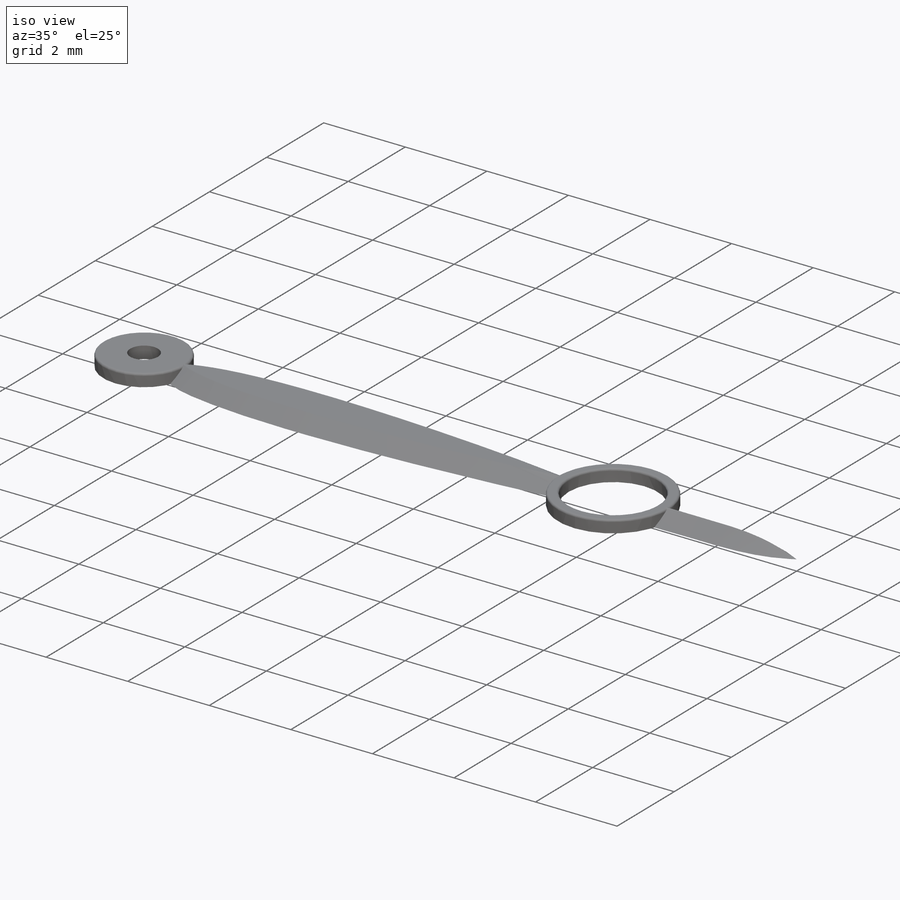
[diagram: iso view]
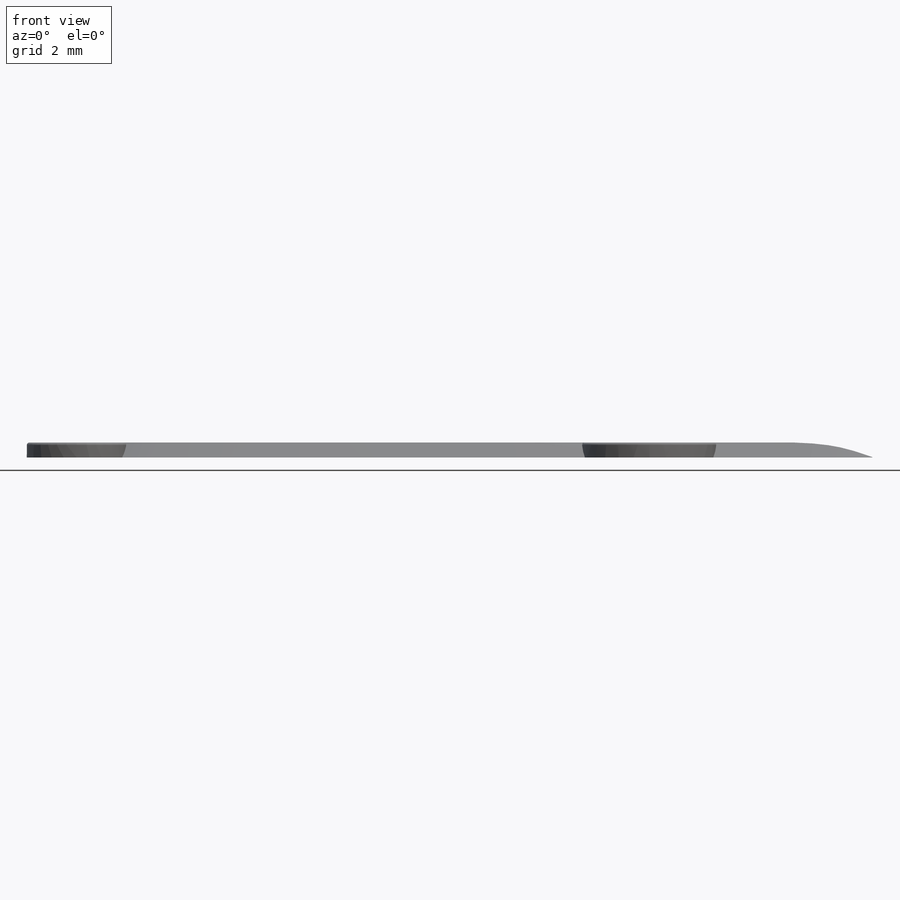
[diagram: front view]
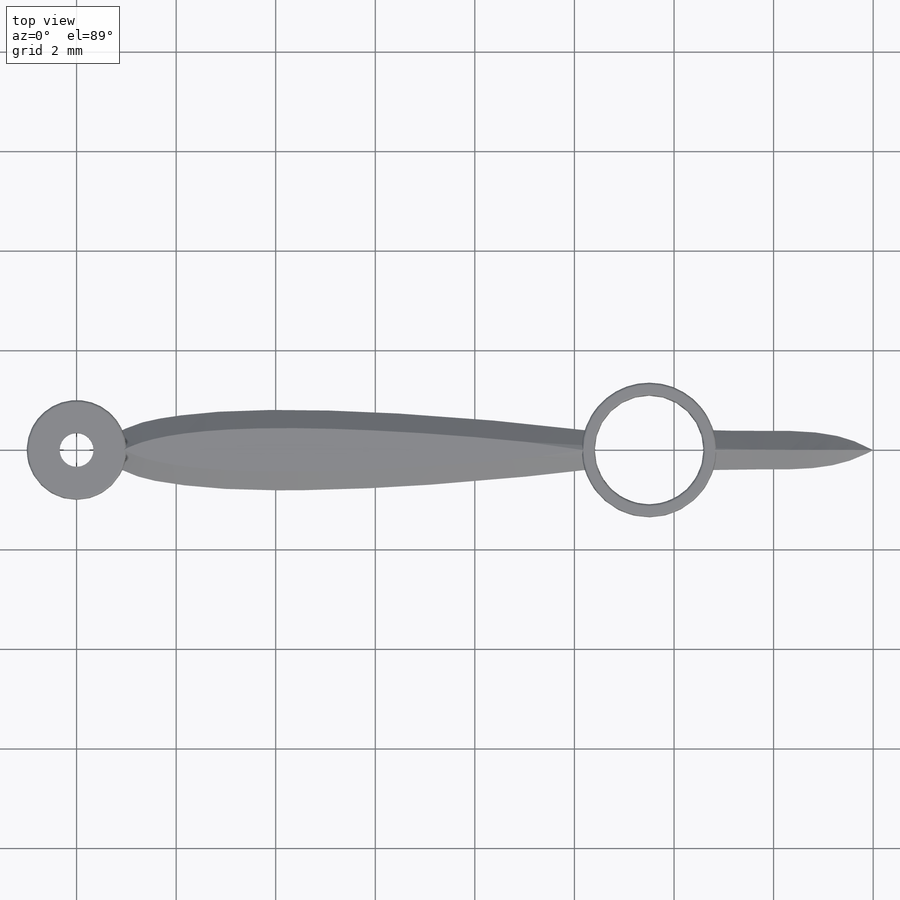
[diagram: top view]
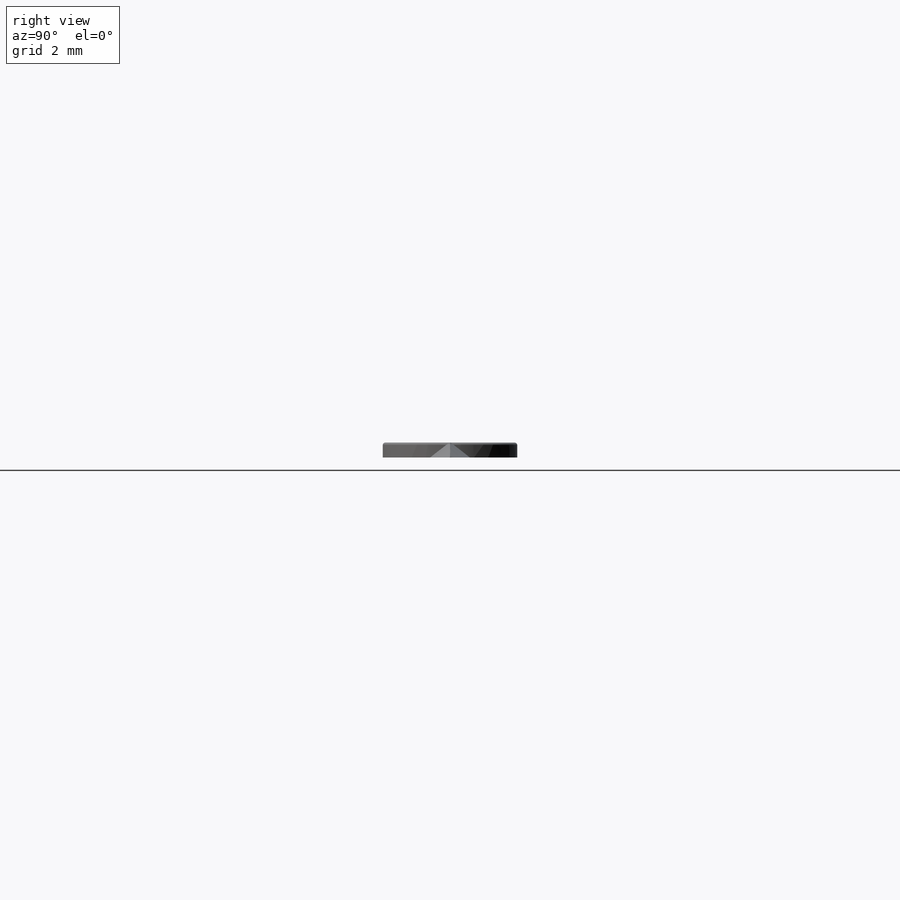
[diagram: right view]
SOLIDWORKS PART (.sldprt)
format: sldprt  version: not decoded by parser v0  size: 434,176 bytes
history: native  units: mm
features: fillet x3, chamfer x2, material x1, sketch x1, extrude x1 (+11 scaffold rows collapsed)
feature tree (19):
  scaffold x11  (default folders/planes/origin — collapsed)
  material  "Material <not specified>"
  sketch  "Sketch1"  dims[c1.D1=0.68mm c1.D3=2.7mm c1.D4=~2.184877mm c1.D5=1.0mm c1.D2=16.0mm c2.D4=4.5mm c2.D6=0.4mm c2.D7=0.4mm c2.D8=0.4mm]
  extrude  "Boss-Extrude1"  Depth=0.3mm
  chamfer  "Chamfer1"  Distance=0.3mm Angle=51deg
  chamfer  "Chamfer2"  Distance=0.3mm Angle=52deg
  fillet  "Fillet1"  Radius=0.05mm
  fillet  "Fillet2"  Radius=0.05mm
  fillet  "Fillet3"  Radius=0.05mm
decode coverage: 7 of 7 modeling features carry decoded parameters
note: ~ marks probable driven/reference dimensions
note: suppression state not decoded; provenance and decode notes live in map.json
